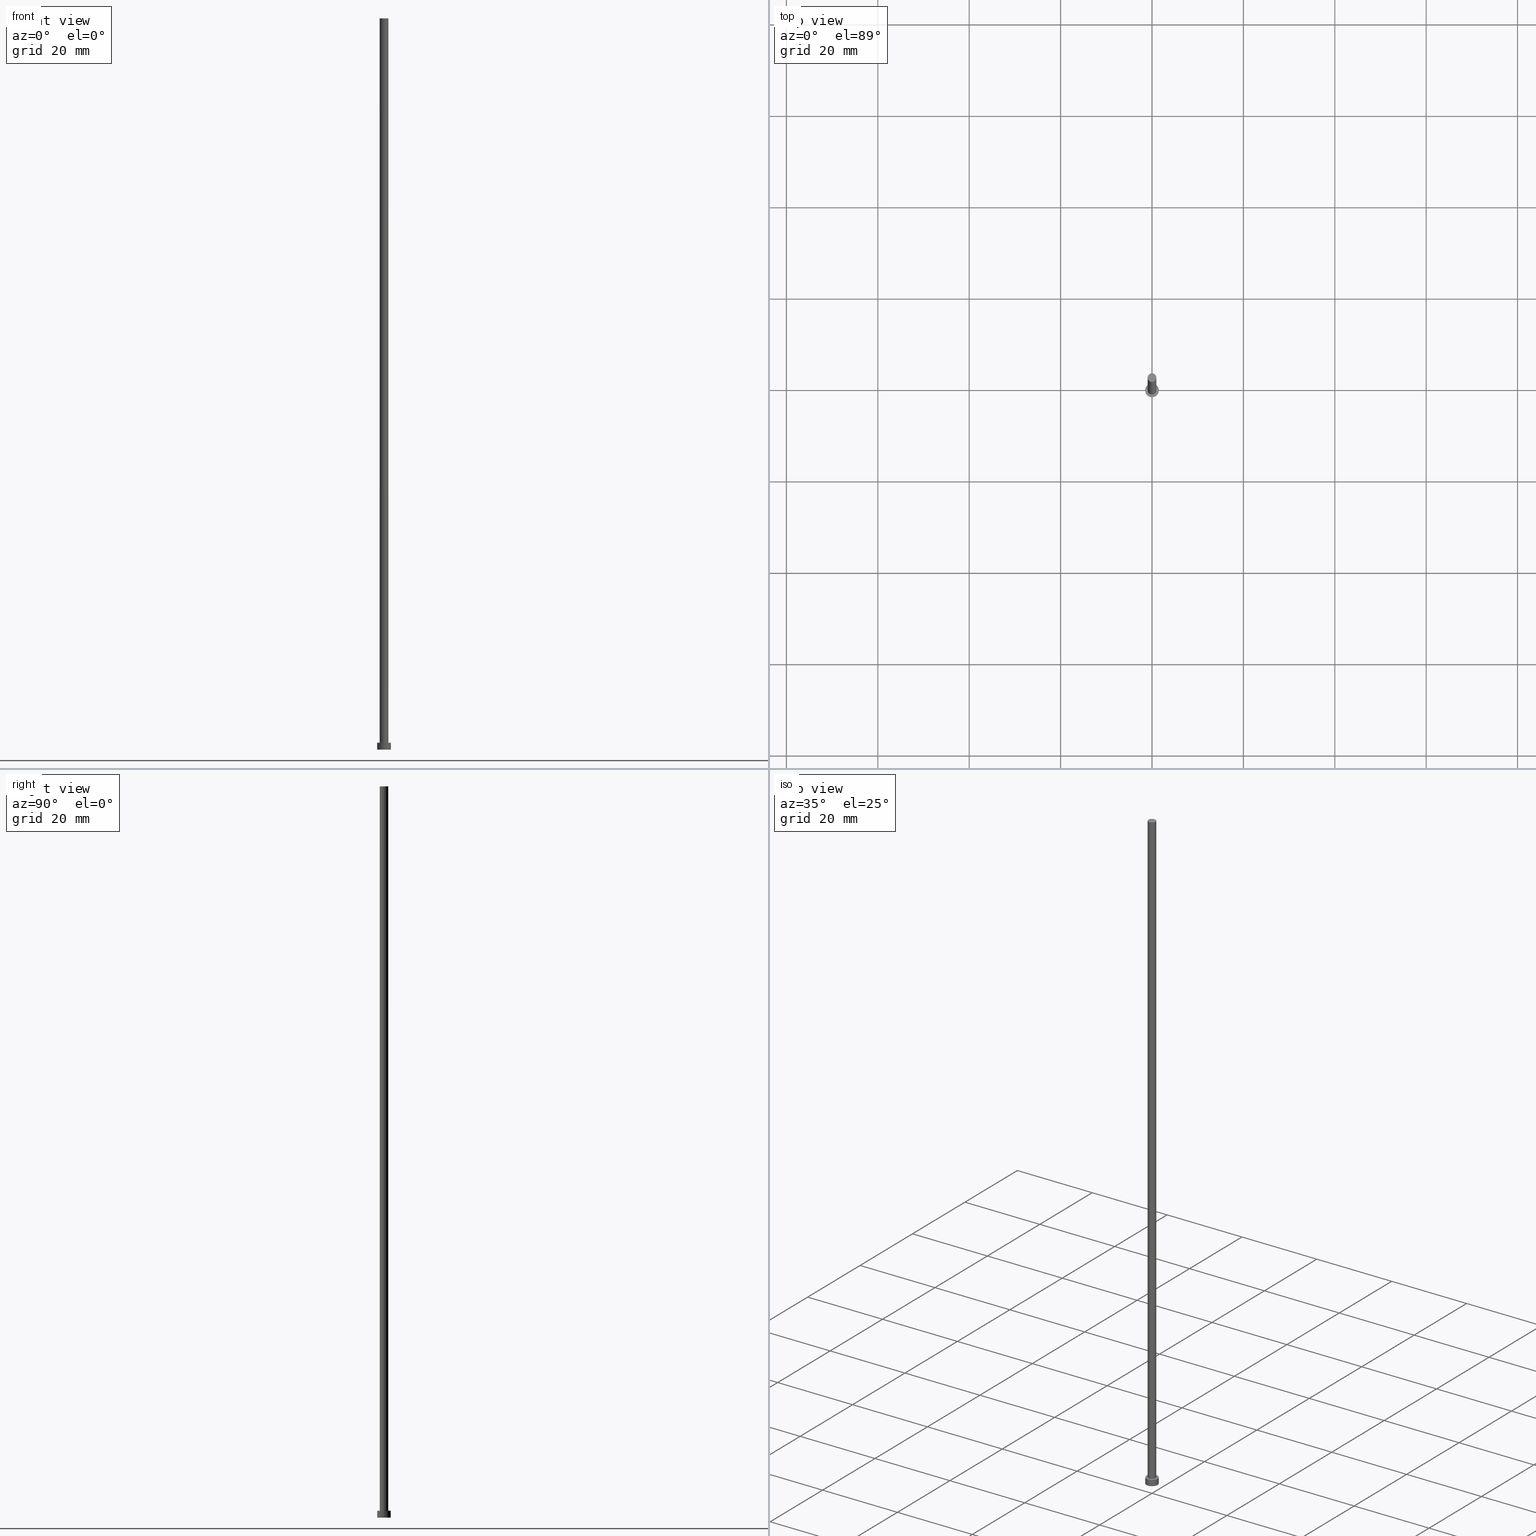
[diagram: canonical four-view strip — front | top / right | iso, engineering-drawing reading convention]
A machine part, canonical four-view strip (front | top / right | iso — engineering-drawing reading convention). The complete STEP part file that produces these views, byte-faithful:
ISO-10303-21;
HEADER;
FILE_DESCRIPTION (( 'STEP AP203' ),
    '1' );
FILE_NAME ('1a57.STEP',
    '2023-02-13T14:56:29',
    ( '' ),
    ( '' ),
    'SwSTEP 2.0',
    'SolidWorks 2019',
    '' );
FILE_SCHEMA (( 'CONFIG_CONTROL_DESIGN' ));
ENDSEC;

DATA;
#1 = APPROVAL_STATUS ( 'not_yet_approved' ) ;
#2 = AXIS2_PLACEMENT_3D ( 'NONE', #137, #133, #99 ) ;
#3 = APPROVAL_PERSON_ORGANIZATION ( #236, #5, #141 ) ;
#4 = AXIS2_PLACEMENT_3D ( 'NONE', #130, #241, #221 ) ;
#5 = APPROVAL ( #66, 'NEUR�EN�' ) ;
#6 = VERTEX_POINT ( 'NONE', #226 ) ;
#7 = EDGE_CURVE ( 'NONE', #18, #139, #26, .T. ) ;
#8 = CARTESIAN_POINT ( 'NONE',  ( 0.000000000000000000, 0.000000000000000000, 1.500000000000000000 ) ) ;
#9 = VERTEX_POINT ( 'NONE', #73 ) ;
#10 = DIRECTION ( 'NONE',  ( -0.000000000000000000, -0.000000000000000000, -1.000000000000000000 ) ) ;
#11 = COORDINATED_UNIVERSAL_TIME_OFFSET ( 1, 0, .AHEAD. ) ;
#12 = ORIENTED_EDGE ( 'NONE', *, *, #91, .T. ) ;
#13 = CARTESIAN_POINT ( 'NONE',  ( 0.000000000000000000, 0.000000000000000000, 160.0000000000000000 ) ) ;
#14 = FACE_OUTER_BOUND ( 'NONE', #89, .T. ) ;
#15 = DIRECTION ( 'NONE',  ( 0.000000000000000000, 0.000000000000000000, 1.000000000000000000 ) ) ;
#16 = AXIS2_PLACEMENT_3D ( 'NONE', #76, #162, #25 ) ;
#17 = ADVANCED_FACE ( 'NONE', ( #115, #69 ), #189, .T. ) ;
#18 = VERTEX_POINT ( 'NONE', #36 ) ;
#19 = DIRECTION ( 'NONE',  ( -1.000000000000000000, 0.000000000000000000, 0.000000000000000000 ) ) ;
#20 = APPROVAL ( #1, 'NEUR�EN�' ) ;
#21 = PERSON_AND_ORGANIZATION ( #51, #27 ) ;
#22 = CYLINDRICAL_SURFACE ( 'NONE', #68, 0.9499999999999999556 ) ;
#23 = COORDINATED_UNIVERSAL_TIME_OFFSET ( 1, 0, .AHEAD. ) ;
#24 = EDGE_CURVE ( 'NONE', #166, #18, #229, .T. ) ;
#25 = DIRECTION ( 'NONE',  ( -1.000000000000000000, 0.000000000000000000, 0.000000000000000000 ) ) ;
#26 = CIRCLE ( 'NONE', #4, 1.500000000000000222 ) ;
#27 = ORGANIZATION ( 'NEUR�EN�', 'NEUR�EN�', '' ) ;
#28 = CC_DESIGN_APPROVAL ( #108, ( #35 ) ) ;
#29 = LOCAL_TIME ( 15, 56, 29.00000000000000000, #64 ) ;
#30 = EDGE_CURVE ( 'NONE', #208, #139, #154, .T. ) ;
#31 = VERTEX_POINT ( 'NONE', #167 ) ;
#32 = DIRECTION ( 'NONE',  ( -0.000000000000000000, -0.000000000000000000, -1.000000000000000000 ) ) ;
#33 = ORIENTED_EDGE ( 'NONE', *, *, #102, .F. ) ;
#34 = ORIENTED_EDGE ( 'NONE', *, *, #91, .F. ) ;
#35 = SECURITY_CLASSIFICATION ( '', '', #104 ) ;
#36 = CARTESIAN_POINT ( 'NONE',  ( -1.500000000000000222, 0.000000000000000000, 0.000000000000000000 ) ) ;
#37 = ORIENTED_EDGE ( 'NONE', *, *, #7, .F. ) ;
#38 = DIRECTION ( 'NONE',  ( 0.000000000000000000, 0.000000000000000000, 1.000000000000000000 ) ) ;
#39 = PERSON_AND_ORGANIZATION ( #51, #27 ) ;
#40 = FACE_OUTER_BOUND ( 'NONE', #48, .T. ) ;
#41 = DIRECTION ( 'NONE',  ( 0.000000000000000000, 0.000000000000000000, 1.000000000000000000 ) ) ;
#42 = CALENDAR_DATE ( 2023, 13, 2 ) ;
#43 = DATE_AND_TIME ( #121, #177 ) ;
#44 = DIRECTION ( 'NONE',  ( -1.000000000000000000, 0.000000000000000000, 0.000000000000000000 ) ) ;
#45 = APPROVAL_DATE_TIME ( #255, #20 ) ;
#46 = PERSON_AND_ORGANIZATION ( #51, #27 ) ;
#47 = CC_DESIGN_APPROVAL ( #20, ( #128 ) ) ;
#48 = EDGE_LOOP ( 'NONE', ( #12, #172 ) ) ;
#49 = EDGE_CURVE ( 'NONE', #31, #9, #216, .T. ) ;
#50 = VECTOR ( 'NONE', #32, 1000.000000000000000 ) ;
#51 = PERSON ( 'NEUR�EN�', 'NEUR�EN�', 'NEUR�EN�', ('NEUR�EN�'), ('NEUR�EN�'), ('NEUR�EN�') ) ;
#52 = ORIENTED_EDGE ( 'NONE', *, *, #30, .T. ) ;
#53 = EDGE_LOOP ( 'NONE', ( #225, #210 ) ) ;
#54 = FACE_OUTER_BOUND ( 'NONE', #92, .T. ) ;
#55 = DIRECTION ( 'NONE',  ( -0.000000000000000000, -0.000000000000000000, -1.000000000000000000 ) ) ;
#56 = ADVANCED_FACE ( 'NONE', ( #14 ), #62, .F. ) ;
#57 =( NAMED_UNIT ( * ) PLANE_ANGLE_UNIT ( ) SI_UNIT ( $, .RADIAN. ) );
#58 = DIRECTION ( 'NONE',  ( 0.000000000000000000, 0.000000000000000000, 1.000000000000000000 ) ) ;
#59 = AXIS2_PLACEMENT_3D ( 'NONE', #120, #194, #232 ) ;
#60 = CARTESIAN_POINT ( 'NONE',  ( 0.000000000000000000, 0.000000000000000000, 1.500000000000000000 ) ) ;
#61 = PERSON_AND_ORGANIZATION ( #51, #27 ) ;
#62 = PLANE ( 'NONE',  #165 ) ;
#63 = CC_DESIGN_SECURITY_CLASSIFICATION ( #35, ( #98 ) ) ;
#64 = COORDINATED_UNIVERSAL_TIME_OFFSET ( 1, 0, .AHEAD. ) ;
#65 = ORIENTED_EDGE ( 'NONE', *, *, #113, .T. ) ;
#66 = APPROVAL_STATUS ( 'not_yet_approved' ) ;
#67 = ORIENTED_EDGE ( 'NONE', *, *, #49, .F. ) ;
#68 = AXIS2_PLACEMENT_3D ( 'NONE', #227, #78, #152 ) ;
#69 = FACE_OUTER_BOUND ( 'NONE', #53, .T. ) ;
#70 = AXIS2_PLACEMENT_3D ( 'NONE', #135, #230, #252 ) ;
#71 = EDGE_CURVE ( 'NONE', #166, #208, #251, .T. ) ;
#72 = CIRCLE ( 'NONE', #238, 0.9499999999999999556 ) ;
#73 = CARTESIAN_POINT ( 'NONE',  ( -0.9499999999999999556, 0.000000000000000000, 1.500000000000000000 ) ) ;
#74 = ORIENTED_EDGE ( 'NONE', *, *, #24, .T. ) ;
#75 = DIRECTION ( 'NONE',  ( -0.000000000000000000, -0.000000000000000000, -1.000000000000000000 ) ) ;
#76 = CARTESIAN_POINT ( 'NONE',  ( 0.000000000000000000, 0.000000000000000000, 1.500000000000000000 ) ) ;
#77 = CARTESIAN_POINT ( 'NONE',  ( -0.9499999999999999556, 0.000000000000000000, 160.0000000000000000 ) ) ;
#78 = DIRECTION ( 'NONE',  ( -0.000000000000000000, -0.000000000000000000, -1.000000000000000000 ) ) ;
#79 = ORIENTED_EDGE ( 'NONE', *, *, #113, .F. ) ;
#80 = DIRECTION ( 'NONE',  ( -0.000000000000000000, -0.000000000000000000, -1.000000000000000000 ) ) ;
#81 = PERSON_AND_ORGANIZATION_ROLE ( 'creator' ) ;
#82 = AXIS2_PLACEMENT_3D ( 'NONE', #245, #151, #136 ) ;
#83 = ORIENTED_EDGE ( 'NONE', *, *, #240, .F. ) ;
#84 = VECTOR ( 'NONE', #55, 1000.000000000000000 ) ;
#85 = PERSON_AND_ORGANIZATION_ROLE ( 'design_supplier' ) ;
#86 = ORIENTED_EDGE ( 'NONE', *, *, #49, .T. ) ;
#87 = ADVANCED_FACE ( 'NONE', ( #40 ), #122, .T. ) ;
#88 = AXIS2_PLACEMENT_3D ( 'NONE', #96, #41, #212 ) ;
#89 = EDGE_LOOP ( 'NONE', ( #37, #131 ) ) ;
#90 = ORIENTED_EDGE ( 'NONE', *, *, #102, .T. ) ;
#91 = EDGE_CURVE ( 'NONE', #31, #6, #72, .T. ) ;
#92 = EDGE_LOOP ( 'NONE', ( #83, #52, #235, #129 ) ) ;
#93 = FACE_OUTER_BOUND ( 'NONE', #125, .T. ) ;
#94 = ORIENTED_EDGE ( 'NONE', *, *, #71, .F. ) ;
#95 = DIRECTION ( 'NONE',  ( 1.000000000000000000, 0.000000000000000000, 0.000000000000000000 ) ) ;
#96 = CARTESIAN_POINT ( 'NONE',  ( 0.000000000000000000, 0.000000000000000000, 1.500000000000000000 ) ) ;
#97 = PRODUCT_RELATED_PRODUCT_CATEGORY ( 'detail', '', ( #206 ) ) ;
#98 = PRODUCT_DEFINITION_FORMATION_WITH_SPECIFIED_SOURCE ( 'LIBOVOLN�', '', #206, .NOT_KNOWN. ) ;
#99 = DIRECTION ( 'NONE',  ( 1.000000000000000000, 0.000000000000000000, 0.000000000000000000 ) ) ;
#100 = APPLICATION_PROTOCOL_DEFINITION ( 'international standard', 'config_control_design', 1994, #175 ) ;
#101 = CARTESIAN_POINT ( 'NONE',  ( -1.500000000000000222, 0.000000000000000000, 1.500000000000000000 ) ) ;
#102 = EDGE_CURVE ( 'NONE', #9, #168, #134, .T. ) ;
#103 = CALENDAR_DATE ( 2023, 13, 2 ) ;
#104 = SECURITY_CLASSIFICATION_LEVEL ( 'unclassified' ) ;
#105 = CC_DESIGN_DATE_AND_TIME_ASSIGNMENT ( #43, #123, ( #128 ) ) ;
#106 = CALENDAR_DATE ( 2023, 13, 2 ) ;
#107 = EDGE_CURVE ( 'NONE', #139, #18, #148, .T. ) ;
#108 = APPROVAL ( #253, 'NEUR�EN�' ) ;
#109 = ADVANCED_BREP_SHAPE_REPRESENTATION ( '1a57', ( #250, #207 ), #142 ) ;
#110 = AXIS2_PLACEMENT_3D ( 'NONE', #211, #58, #118 ) ;
#111 = AXIS2_PLACEMENT_3D ( 'NONE', #149, #244, #44 ) ;
#112 = VECTOR ( 'NONE', #75, 1000.000000000000000 ) ;
#113 = EDGE_CURVE ( 'NONE', #168, #9, #203, .T. ) ;
#114 =( LENGTH_UNIT ( ) NAMED_UNIT ( * ) SI_UNIT ( .MILLI., .METRE. ) );
#115 = FACE_BOUND ( 'NONE', #243, .T. ) ;
#116 = DIRECTION ( 'NONE',  ( 1.000000000000000000, 0.000000000000000000, 0.000000000000000000 ) ) ;
#117 = ORIENTED_EDGE ( 'NONE', *, *, #220, .T. ) ;
#118 = DIRECTION ( 'NONE',  ( 1.000000000000000000, 0.000000000000000000, 0.000000000000000000 ) ) ;
#119 = PERSON_AND_ORGANIZATION_ROLE ( 'design_owner' ) ;
#120 = CARTESIAN_POINT ( 'NONE',  ( 0.000000000000000000, 0.000000000000000000, 0.000000000000000000 ) ) ;
#121 = CALENDAR_DATE ( 2023, 13, 2 ) ;
#122 = PLANE ( 'NONE',  #70 ) ;
#123 = DATE_TIME_ROLE ( 'creation_date' ) ;
#124 = APPROVAL_DATE_TIME ( #218, #5 ) ;
#125 = EDGE_LOOP ( 'NONE', ( #214, #94, #74, #233 ) ) ;
#126 = CC_DESIGN_DATE_AND_TIME_ASSIGNMENT ( #182, #140, ( #35 ) ) ;
#127 = LOCAL_TIME ( 15, 56, 29.00000000000000000, #159 ) ;
#128 = PRODUCT_DEFINITION ( 'NEZN�M�', '', #98, #183 ) ;
#129 = ORIENTED_EDGE ( 'NONE', *, *, #24, .F. ) ;
#130 = CARTESIAN_POINT ( 'NONE',  ( 0.000000000000000000, 0.000000000000000000, 0.000000000000000000 ) ) ;
#131 = ORIENTED_EDGE ( 'NONE', *, *, #107, .F. ) ;
#132 = CYLINDRICAL_SURFACE ( 'NONE', #195, 1.500000000000000222 ) ;
#133 = DIRECTION ( 'NONE',  ( 0.000000000000000000, 0.000000000000000000, 1.000000000000000000 ) ) ;
#134 = CIRCLE ( 'NONE', #110, 0.9499999999999999556 ) ;
#135 = CARTESIAN_POINT ( 'NONE',  ( 0.000000000000000000, 0.000000000000000000, 160.0000000000000000 ) ) ;
#136 = DIRECTION ( 'NONE',  ( 1.000000000000000000, 0.000000000000000000, 0.000000000000000000 ) ) ;
#137 = CARTESIAN_POINT ( 'NONE',  ( 0.000000000000000000, 0.000000000000000000, 1.500000000000000000 ) ) ;
#138 = CARTESIAN_POINT ( 'NONE',  ( 0.000000000000000000, 0.000000000000000000, 160.0000000000000000 ) ) ;
#139 = VERTEX_POINT ( 'NONE', #178 ) ;
#140 = DATE_TIME_ROLE ( 'classification_date' ) ;
#141 = APPROVAL_ROLE ( '' ) ;
#142 =( GEOMETRIC_REPRESENTATION_CONTEXT ( 3 ) GLOBAL_UNCERTAINTY_ASSIGNED_CONTEXT ( ( #186 ) ) GLOBAL_UNIT_ASSIGNED_CONTEXT ( ( #114, #57, #248 ) ) REPRESENTATION_CONTEXT ( 'NONE', 'WORKASPACE' ) );
#143 = DIRECTION ( 'NONE',  ( 0.000000000000000000, 0.000000000000000000, 1.000000000000000000 ) ) ;
#144 = CC_DESIGN_PERSON_AND_ORGANIZATION_ASSIGNMENT ( #237, #81, ( #128 ) ) ;
#145 = APPROVAL_PERSON_ORGANIZATION ( #61, #108, #191 ) ;
#146 = EDGE_LOOP ( 'NONE', ( #247, #117, #65, #67 ) ) ;
#147 = CARTESIAN_POINT ( 'NONE',  ( 0.9499999999999999556, 1.163414459189985682E-16, 160.0000000000000000 ) ) ;
#148 = CIRCLE ( 'NONE', #59, 1.500000000000000222 ) ;
#149 = CARTESIAN_POINT ( 'NONE',  ( 0.000000000000000000, 0.000000000000000000, 160.0000000000000000 ) ) ;
#150 = CARTESIAN_POINT ( 'NONE',  ( 0.9499999999999999556, 1.163414459189985682E-16, 1.500000000000000000 ) ) ;
#151 = DIRECTION ( 'NONE',  ( 0.000000000000000000, 0.000000000000000000, 1.000000000000000000 ) ) ;
#152 = DIRECTION ( 'NONE',  ( -1.000000000000000000, 0.000000000000000000, 0.000000000000000000 ) ) ;
#153 = CARTESIAN_POINT ( 'NONE',  ( 0.000000000000000000, 0.000000000000000000, 0.000000000000000000 ) ) ;
#154 = LINE ( 'NONE', #246, #84 ) ;
#155 = CC_DESIGN_PERSON_AND_ORGANIZATION_ASSIGNMENT ( #21, #184, ( #35 ) ) ;
#156 = APPROVAL_DATE_TIME ( #231, #108 ) ;
#157 = PERSON_AND_ORGANIZATION ( #51, #27 ) ;
#158 = ADVANCED_FACE ( 'NONE', ( #196 ), #249, .T. ) ;
#159 = COORDINATED_UNIVERSAL_TIME_OFFSET ( 1, 0, .AHEAD. ) ;
#160 = ORIENTED_EDGE ( 'NONE', *, *, #220, .F. ) ;
#161 = CC_DESIGN_APPROVAL ( #5, ( #98 ) ) ;
#162 = DIRECTION ( 'NONE',  ( -0.000000000000000000, -0.000000000000000000, -1.000000000000000000 ) ) ;
#163 = APPLICATION_CONTEXT ( 'configuration controlled 3d designs of mechanical parts and assemblies' ) ;
#164 = LINE ( 'NONE', #147, #50 ) ;
#165 = AXIS2_PLACEMENT_3D ( 'NONE', #174, #15, #181 ) ;
#166 = VERTEX_POINT ( 'NONE', #199 ) ;
#167 = CARTESIAN_POINT ( 'NONE',  ( -0.9499999999999999556, 0.000000000000000000, 160.0000000000000000 ) ) ;
#168 = VERTEX_POINT ( 'NONE', #150 ) ;
#169 = VECTOR ( 'NONE', #80, 1000.000000000000000 ) ;
#170 = DIRECTION ( 'NONE',  ( 0.000000000000000000, 0.000000000000000000, 1.000000000000000000 ) ) ;
#171 = CYLINDRICAL_SURFACE ( 'NONE', #16, 1.500000000000000222 ) ;
#172 = ORIENTED_EDGE ( 'NONE', *, *, #228, .T. ) ;
#173 = DIRECTION ( 'NONE',  ( 1.000000000000000000, 0.000000000000000000, 0.000000000000000000 ) ) ;
#174 = CARTESIAN_POINT ( 'NONE',  ( 0.000000000000000000, 0.000000000000000000, 0.000000000000000000 ) ) ;
#175 = APPLICATION_CONTEXT ( 'configuration controlled 3d designs of mechanical parts and assemblies' ) ;
#176 = SHAPE_DEFINITION_REPRESENTATION ( #222, #109 ) ;
#177 = LOCAL_TIME ( 15, 56, 29.00000000000000000, #23 ) ;
#178 = CARTESIAN_POINT ( 'NONE',  ( 1.500000000000000222, 1.836970198721030181E-16, 0.000000000000000000 ) ) ;
#179 = CC_DESIGN_PERSON_AND_ORGANIZATION_ASSIGNMENT ( #39, #119, ( #206 ) ) ;
#180 = MECHANICAL_CONTEXT ( 'NONE', #175, 'mechanical' ) ;
#181 = DIRECTION ( 'NONE',  ( 1.000000000000000000, 0.000000000000000000, -0.000000000000000000 ) ) ;
#182 = DATE_AND_TIME ( #103, #29 ) ;
#183 = DESIGN_CONTEXT ( 'detailed design', #163, 'design' ) ;
#184 = PERSON_AND_ORGANIZATION_ROLE ( 'classification_officer' ) ;
#185 = PERSON_AND_ORGANIZATION_ROLE ( 'creator' ) ;
#186 = UNCERTAINTY_MEASURE_WITH_UNIT (LENGTH_MEASURE( 1.000000000000000082E-05 ), #114, 'distance_accuracy_value', 'NONE');
#187 = ADVANCED_FACE ( 'NONE', ( #190 ), #22, .T. ) ;
#188 = CARTESIAN_POINT ( 'NONE',  ( 1.500000000000000222, 1.836970198721030181E-16, 1.500000000000000000 ) ) ;
#189 = PLANE ( 'NONE',  #193 ) ;
#190 = FACE_OUTER_BOUND ( 'NONE', #192, .T. ) ;
#191 = APPROVAL_ROLE ( '' ) ;
#192 = EDGE_LOOP ( 'NONE', ( #160, #34, #86, #90 ) ) ;
#193 = AXIS2_PLACEMENT_3D ( 'NONE', #8, #143, #204 ) ;
#194 = DIRECTION ( 'NONE',  ( 0.000000000000000000, 0.000000000000000000, 1.000000000000000000 ) ) ;
#195 = AXIS2_PLACEMENT_3D ( 'NONE', #60, #10, #19 ) ;
#196 = FACE_OUTER_BOUND ( 'NONE', #146, .T. ) ;
#197 = PERSON_AND_ORGANIZATION ( #51, #27 ) ;
#198 = CLOSED_SHELL ( 'NONE', ( #158, #200, #205, #17, #56, #187, #87 ) ) ;
#199 = CARTESIAN_POINT ( 'NONE',  ( -1.500000000000000222, 0.000000000000000000, 1.500000000000000000 ) ) ;
#200 = ADVANCED_FACE ( 'NONE', ( #54 ), #132, .T. ) ;
#201 = APPROVAL_ROLE ( '' ) ;
#202 = COORDINATED_UNIVERSAL_TIME_OFFSET ( 1, 0, .AHEAD. ) ;
#203 = CIRCLE ( 'NONE', #88, 0.9499999999999999556 ) ;
#204 = DIRECTION ( 'NONE',  ( 1.000000000000000000, 0.000000000000000000, -0.000000000000000000 ) ) ;
#205 = ADVANCED_FACE ( 'NONE', ( #93 ), #171, .T. ) ;
#206 = PRODUCT ( '1a57', '1a57', '', ( #180 ) ) ;
#207 = AXIS2_PLACEMENT_3D ( 'NONE', #153, #38, #173 ) ;
#208 = VERTEX_POINT ( 'NONE', #188 ) ;
#209 = LOCAL_TIME ( 15, 56, 29.00000000000000000, #11 ) ;
#210 = ORIENTED_EDGE ( 'NONE', *, *, #240, .T. ) ;
#211 = CARTESIAN_POINT ( 'NONE',  ( 0.000000000000000000, 0.000000000000000000, 1.500000000000000000 ) ) ;
#212 = DIRECTION ( 'NONE',  ( 1.000000000000000000, 0.000000000000000000, 0.000000000000000000 ) ) ;
#213 = APPROVAL_PERSON_ORGANIZATION ( #46, #20, #201 ) ;
#214 = ORIENTED_EDGE ( 'NONE', *, *, #30, .F. ) ;
#215 = APPLICATION_PROTOCOL_DEFINITION ( 'international standard', 'config_control_design', 1994, #163 ) ;
#216 = LINE ( 'NONE', #77, #112 ) ;
#217 = CALENDAR_DATE ( 2023, 13, 2 ) ;
#218 = DATE_AND_TIME ( #217, #254 ) ;
#219 = AXIS2_PLACEMENT_3D ( 'NONE', #13, #170, #95 ) ;
#220 = EDGE_CURVE ( 'NONE', #6, #168, #164, .T. ) ;
#221 = DIRECTION ( 'NONE',  ( 1.000000000000000000, 0.000000000000000000, 0.000000000000000000 ) ) ;
#222 = PRODUCT_DEFINITION_SHAPE ( 'NONE', 'NONE',  #128 ) ;
#223 = CIRCLE ( 'NONE', #82, 1.500000000000000222 ) ;
#224 = CC_DESIGN_PERSON_AND_ORGANIZATION_ASSIGNMENT ( #157, #85, ( #98 ) ) ;
#225 = ORIENTED_EDGE ( 'NONE', *, *, #71, .T. ) ;
#226 = CARTESIAN_POINT ( 'NONE',  ( 0.9499999999999999556, 1.163414459189985682E-16, 160.0000000000000000 ) ) ;
#227 = CARTESIAN_POINT ( 'NONE',  ( 0.000000000000000000, 0.000000000000000000, 160.0000000000000000 ) ) ;
#228 = EDGE_CURVE ( 'NONE', #6, #31, #239, .T. ) ;
#229 = LINE ( 'NONE', #101, #169 ) ;
#230 = DIRECTION ( 'NONE',  ( 0.000000000000000000, 0.000000000000000000, 1.000000000000000000 ) ) ;
#231 = DATE_AND_TIME ( #42, #209 ) ;
#232 = DIRECTION ( 'NONE',  ( 1.000000000000000000, 0.000000000000000000, 0.000000000000000000 ) ) ;
#233 = ORIENTED_EDGE ( 'NONE', *, *, #7, .T. ) ;
#234 = DIRECTION ( 'NONE',  ( 0.000000000000000000, 0.000000000000000000, 1.000000000000000000 ) ) ;
#235 = ORIENTED_EDGE ( 'NONE', *, *, #107, .T. ) ;
#236 = PERSON_AND_ORGANIZATION ( #51, #27 ) ;
#237 = PERSON_AND_ORGANIZATION ( #51, #27 ) ;
#238 = AXIS2_PLACEMENT_3D ( 'NONE', #138, #234, #116 ) ;
#239 = CIRCLE ( 'NONE', #219, 0.9499999999999999556 ) ;
#240 = EDGE_CURVE ( 'NONE', #208, #166, #223, .T. ) ;
#241 = DIRECTION ( 'NONE',  ( 0.000000000000000000, 0.000000000000000000, 1.000000000000000000 ) ) ;
#242 = CC_DESIGN_PERSON_AND_ORGANIZATION_ASSIGNMENT ( #197, #185, ( #98 ) ) ;
#243 = EDGE_LOOP ( 'NONE', ( #33, #79 ) ) ;
#244 = DIRECTION ( 'NONE',  ( -0.000000000000000000, -0.000000000000000000, -1.000000000000000000 ) ) ;
#245 = CARTESIAN_POINT ( 'NONE',  ( 0.000000000000000000, 0.000000000000000000, 1.500000000000000000 ) ) ;
#246 = CARTESIAN_POINT ( 'NONE',  ( 1.500000000000000222, 1.836970198721030181E-16, 1.500000000000000000 ) ) ;
#247 = ORIENTED_EDGE ( 'NONE', *, *, #228, .F. ) ;
#248 =( NAMED_UNIT ( * ) SI_UNIT ( $, .STERADIAN. ) SOLID_ANGLE_UNIT ( ) );
#249 = CYLINDRICAL_SURFACE ( 'NONE', #111, 0.9499999999999999556 ) ;
#250 = MANIFOLD_SOLID_BREP ( 'P�idat vysunut�m3', #198 ) ;
#251 = CIRCLE ( 'NONE', #2, 1.500000000000000222 ) ;
#252 = DIRECTION ( 'NONE',  ( 1.000000000000000000, 0.000000000000000000, -0.000000000000000000 ) ) ;
#253 = APPROVAL_STATUS ( 'not_yet_approved' ) ;
#254 = LOCAL_TIME ( 15, 56, 29.00000000000000000, #202 ) ;
#255 = DATE_AND_TIME ( #106, #127 ) ;
ENDSEC;
END-ISO-10303-21;
